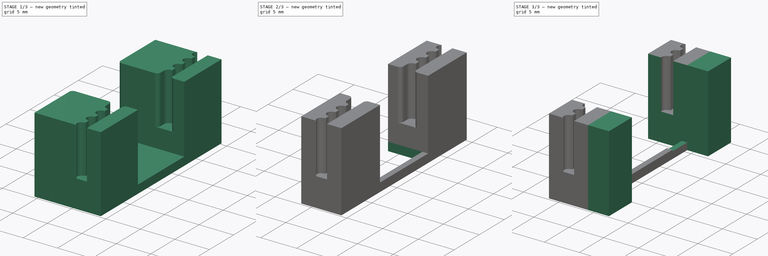
[diagram: build sequence overview — one tinted view per stage of 3, left to right]
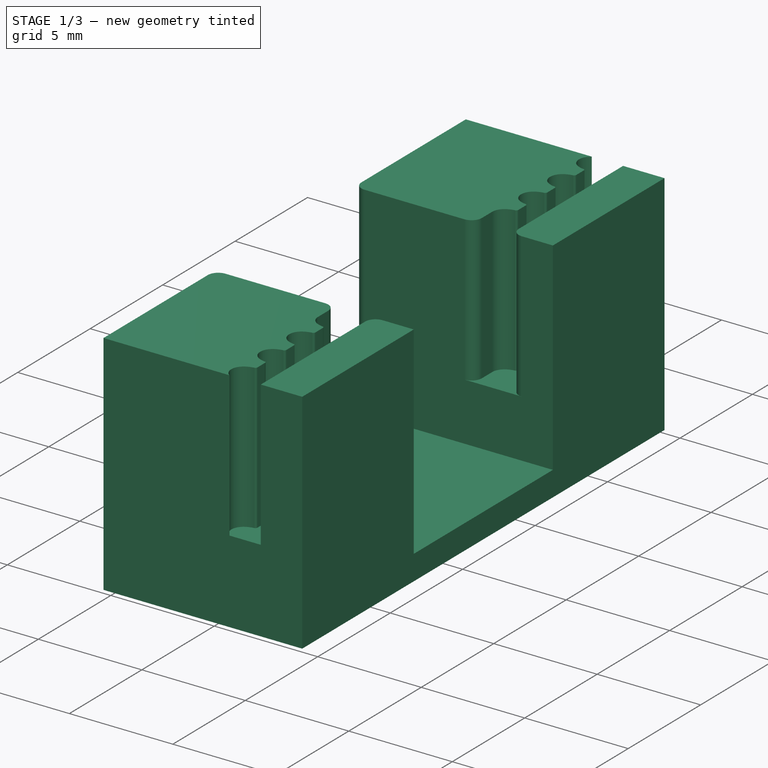
[diagram: stage 1 of 3 — iso view after this stage's code; geometry added in this stage tinted green]
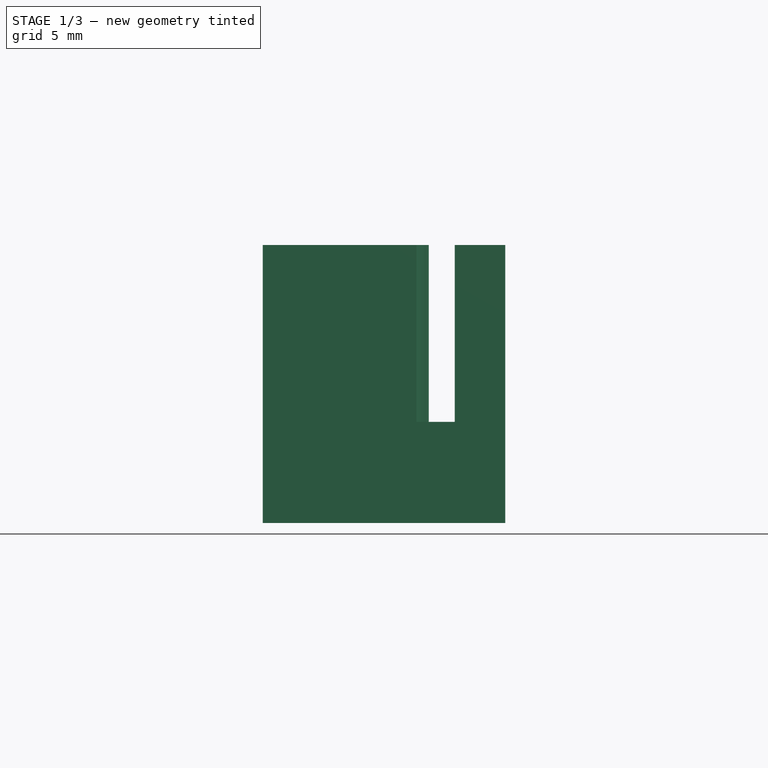
[diagram: stage 1 of 3 — front view after this stage's code; geometry added in this stage tinted green]
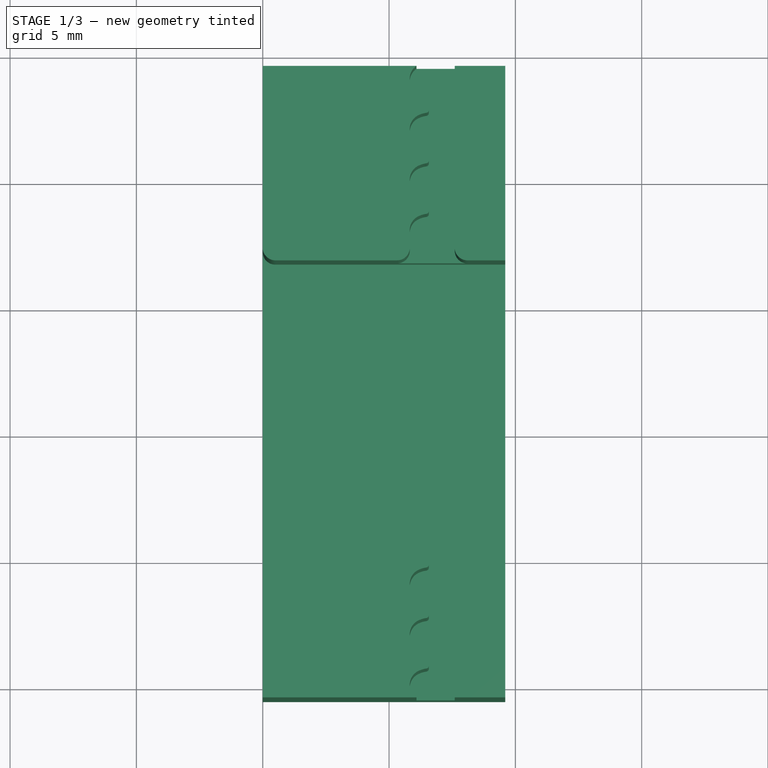
[diagram: stage 1 of 3 — top view after this stage's code; geometry added in this stage tinted green]
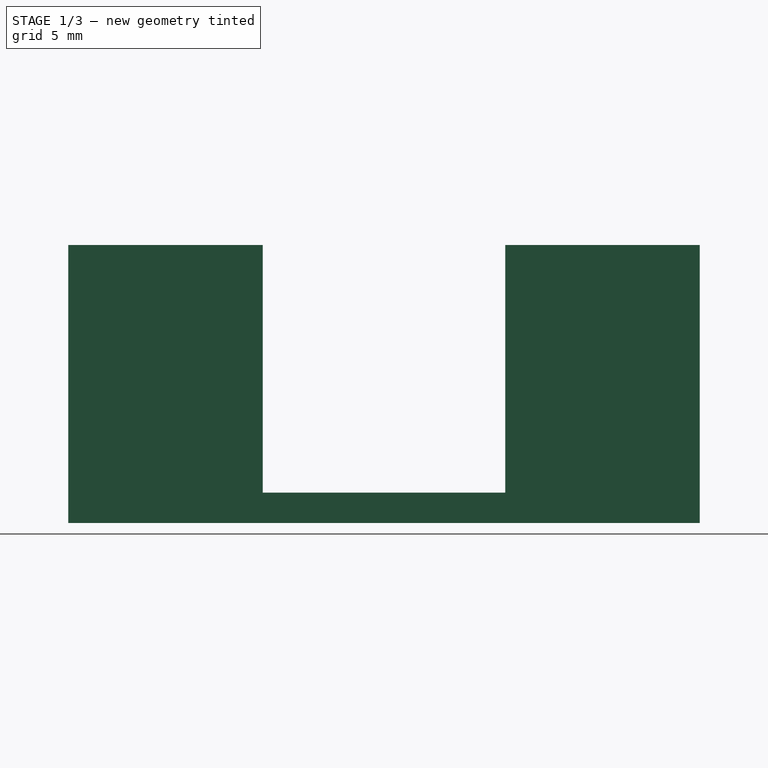
[diagram: stage 1 of 3 — right view after this stage's code; geometry added in this stage tinted green]
FCSTD DOCUMENT  (FreeCAD 0.18.4R)
Label: belt_support_left
License: All rights reserved
LicenseURL: http://en.wikipedia.org/wiki/All_rights_reserved
objects: Sketcher::SketchObject×8, PartDesign::Pocket×6, Part::Feature×1, PartDesign::FeatureBase×1, PartDesign::Pad×1, PartDesign::Body×1
note: 25 computed .brp shape members not serialized (recipe doc carries the construction recipe); baked Part::Feature solids carry a one-line shape summary decoded from their .brp

FEATURE [Part::Feature] Part__Feature  label="FusionComponent"
  shape: bbox 12.6 x 34 x 11 mm, 107 faces (baked)
FEATURE [PartDesign::FeatureBase] BaseFeature
  BaseFeature = -> Part__Feature
FEATURE [Sketcher::SketchObject] Sketch
  ExternalGeometry = -> [BaseFeature]
  MapMode = 5
  Placement = pos=(0,0,9.5) rot=(0,0,1;0rad)
  Support = -> [BaseFeature]
  sketch-geometry (4):
    g0: LineSegment StartX=9.6 StartY=-4.99368 StartZ=0 EndX=17.7992 EndY=-4.99368 EndZ=0
    g1: LineSegment StartX=17.7992 StartY=-4.99368 StartZ=0 EndX=17.7992 EndY=39.6281 EndZ=0
    g2: LineSegment StartX=17.7992 StartY=39.6281 StartZ=0 EndX=9.6 EndY=39.6281 EndZ=0
    g3: LineSegment StartX=9.6 StartY=39.6281 StartZ=0 EndX=9.6 EndY=-4.99368 EndZ=0
  constraints (9):
    c: Coincident(g0,g1)
    c: Coincident(g1,g2)
    c: Coincident(g2,g3)
    c: Coincident(g3,g0)
    c: Horizontal(g0)
    c: Horizontal(g2)
    c: Vertical(g1)
    c: Vertical(g3)
    c: PointOnObject(g-8,g3)
FEATURE [PartDesign::Pocket] Pocket
  BaseFeature = -> BaseFeature
  Length = 12
  Length2 = 100
  Profile = -> Sketch
  Type = 0
FEATURE [Sketcher::SketchObject] Sketch001
  ExternalGeometry = -> [Pocket]
  MapMode = 5
  Placement = pos=(0,0,9.5) rot=(0,0,1;0rad)
  Support = -> [Pocket]
  sketch-geometry (8):
    g0: LineSegment StartX=-2.03435 StartY=29.5 StartZ=0 EndX=14.4363 EndY=29.5 EndZ=0
    g1: LineSegment StartX=14.4363 StartY=29.5 StartZ=0 EndX=14.4363 EndY=34 EndZ=0
    g2: LineSegment StartX=14.4363 StartY=34 StartZ=0 EndX=-2.03435 EndY=34 EndZ=0
    g3: LineSegment StartX=-2.03435 StartY=34 StartZ=0 EndX=-2.03435 EndY=29.5 EndZ=0
    g4: LineSegment StartX=-3.19707 StartY=0 StartZ=0 EndX=14.9866 EndY=0 EndZ=0
    g5: LineSegment StartX=14.9866 StartY=0 StartZ=0 EndX=14.9866 EndY=4.5 EndZ=0
    g6: LineSegment StartX=14.9866 StartY=4.5 StartZ=0 EndX=-3.19707 EndY=4.5 EndZ=0
    g7: LineSegment StartX=-3.19707 StartY=4.5 StartZ=0 EndX=-3.19707 EndY=0 EndZ=0
  constraints (21):
    c: Distance(g-3,g-4) = 34
    c: Coincident(g0,g1)
    c: Coincident(g1,g2)
    c: Coincident(g2,g3)
    c: Coincident(g3,g0)
    c: Horizontal(g0)
    c: Horizontal(g2)
    c: Vertical(g1)
    c: Vertical(g3)
    c: Coincident(g4,g5)
    c: Coincident(g5,g6)
    c: Coincident(g6,g7)
    c: Coincident(g7,g4)
    c: Horizontal(g4)
    c: Horizontal(g6)
    c: Vertical(g5)
    c: Vertical(g7)
    c: DistanceY(g3,g3) = 4.5
    c: DistanceY(g7,g7) = 4.5
    c: PointOnObject(g-3,g2)
    c: PointOnObject(g-4,g4)
FEATURE [PartDesign::Pocket] Pocket001
  BaseFeature = -> Pocket
  Length = 15
  Length2 = 100
  Profile = -> Sketch001
  Type = 0
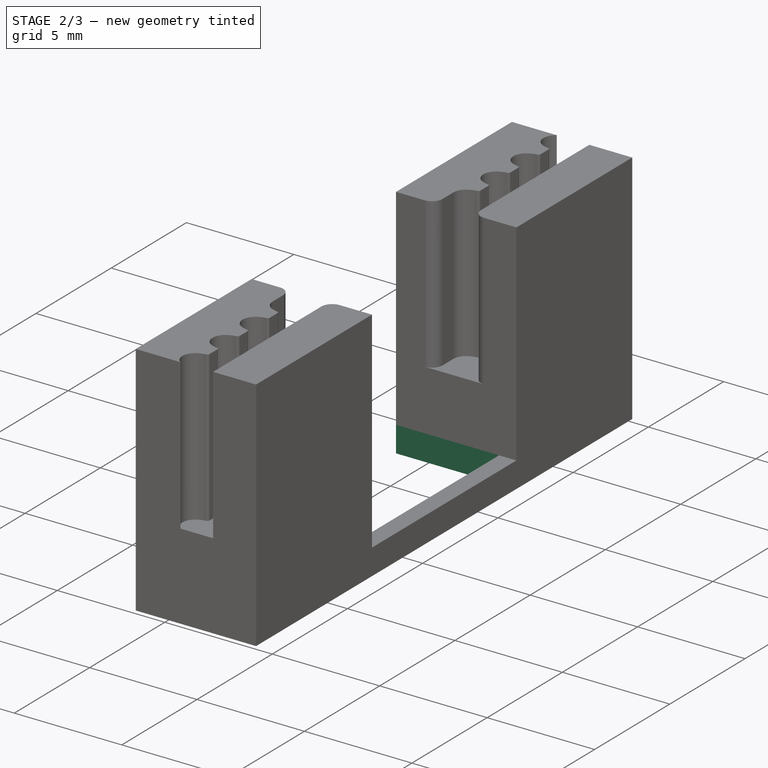
[diagram: stage 2 of 3 — iso view after this stage's code; geometry added in this stage tinted green]
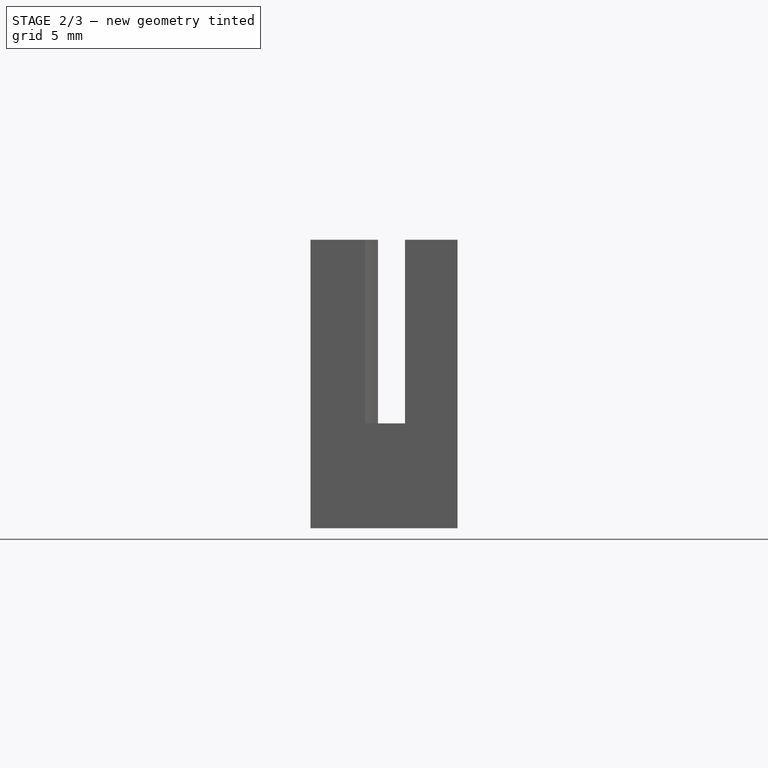
[diagram: stage 2 of 3 — front view after this stage's code; geometry added in this stage tinted green]
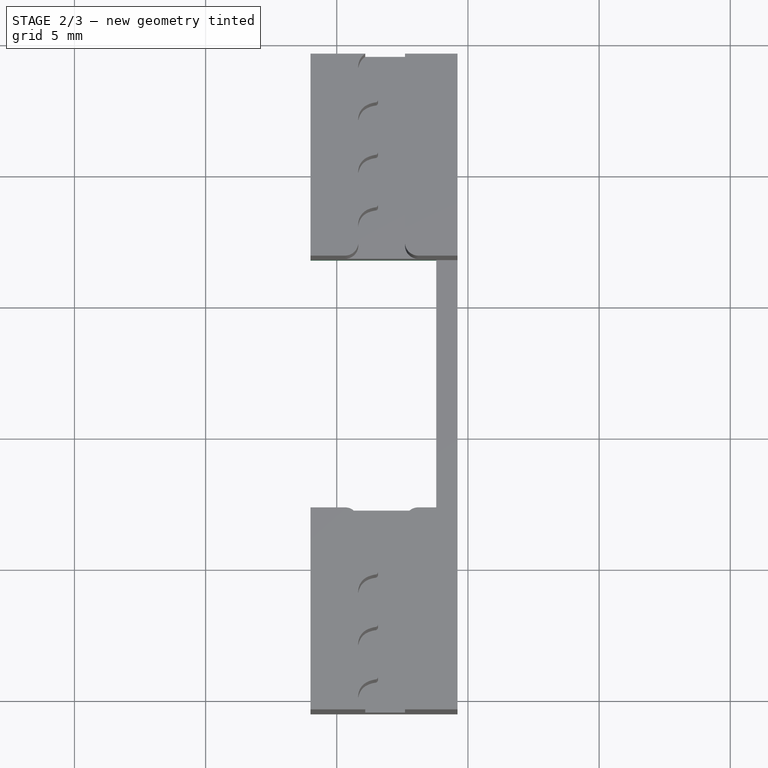
[diagram: stage 2 of 3 — top view after this stage's code; geometry added in this stage tinted green]
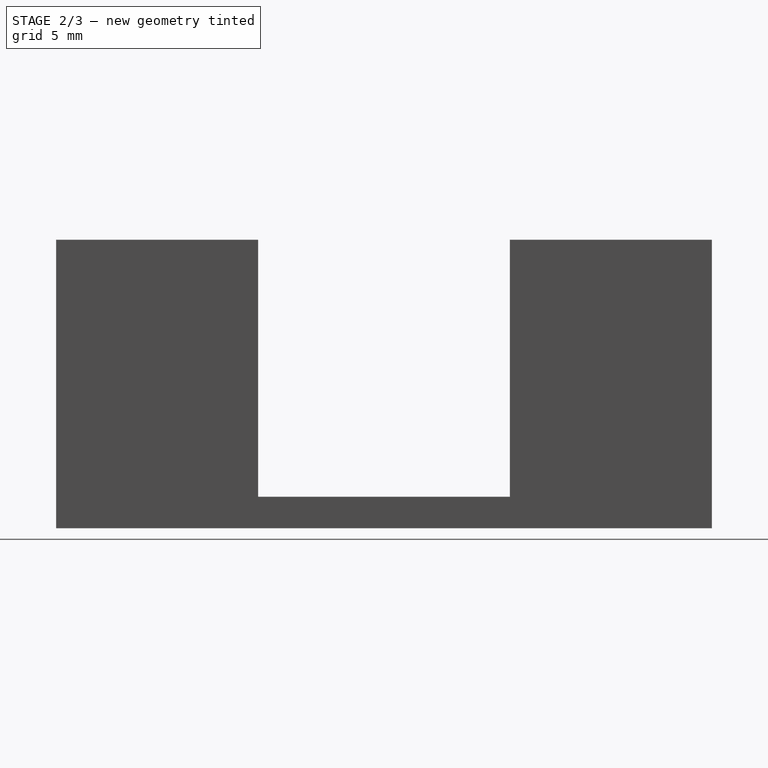
[diagram: stage 2 of 3 — right view after this stage's code; geometry added in this stage tinted green]
FEATURE [Sketcher::SketchObject] Sketch002
  ExternalGeometry = -> [Pocket001]
  MapMode = 5
  Placement = pos=(0,0,-0.3) rot=(0,0,1;0rad)
  Support = -> [Pocket001]
  sketch-geometry (4):
    g0: LineSegment StartX=0 StartY=12.2 StartZ=0 EndX=8.79244 EndY=12.2 EndZ=0
    g1: LineSegment StartX=8.79244 StartY=12.2 StartZ=0 EndX=8.79244 EndY=21.8 EndZ=0
    g2: LineSegment StartX=8.79244 StartY=21.8 StartZ=0 EndX=0 EndY=21.8 EndZ=0
    g3: LineSegment StartX=0 StartY=21.8 StartZ=0 EndX=0 EndY=12.2 EndZ=0
  constraints (11):
    c: Coincident(g0,g1)
    c: Coincident(g1,g2)
    c: Coincident(g2,g3)
    c: Coincident(g3,g0)
    c: Horizontal(g0)
    c: Horizontal(g2)
    c: Vertical(g1)
    c: Vertical(g3)
    c: PointOnObject(g0,g-3)
    c: PointOnObject(g1,g-6)
    c: PointOnObject(g0,g-5)
FEATURE [PartDesign::Pocket] Pocket002
  BaseFeature = -> Pocket001
  Length = 5
  Length2 = 100
  Profile = -> Sketch002
  Type = 0
FEATURE [Sketcher::SketchObject] Sketch003
  ExternalGeometry = -> [Pocket002]
  MapMode = 5
  Placement = pos=(0,0,9.5) rot=(0,0,1;0rad)
  Support = -> [Pocket002]
  sketch-geometry (4):
    g0: LineSegment StartX=0 StartY=29.5 StartZ=0 EndX=4 EndY=29.5 EndZ=0
    g1: LineSegment StartX=4 StartY=29.5 StartZ=0 EndX=4 EndY=4.5 EndZ=0
    g2: LineSegment StartX=4 StartY=4.5 StartZ=0 EndX=0 EndY=4.5 EndZ=0
    g3: LineSegment StartX=0 StartY=4.5 StartZ=0 EndX=0 EndY=29.5 EndZ=0
  constraints (11):
    c: Coincident(g0,g1)
    c: Coincident(g1,g2)
    c: Coincident(g2,g3)
    c: Coincident(g3,g0)
    c: Horizontal(g0)
    c: Horizontal(g2)
    c: Vertical(g1)
    c: Vertical(g3)
    c: Coincident(g0,g-3)
    c: PointOnObject(g1,g-4)
    c: DistanceX(g0,g0) = 4
FEATURE [PartDesign::Pocket] Pocket003
  BaseFeature = -> Pocket002
  Length = 15
  Length2 = 100
  Profile = -> Sketch003
  Type = 0
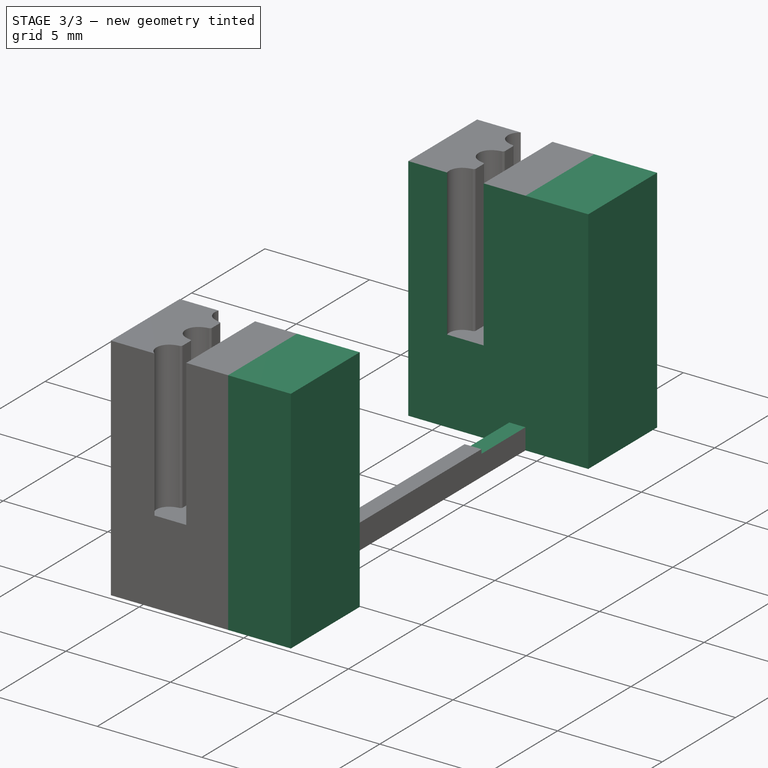
[diagram: stage 3 of 3 — iso view after this stage's code; geometry added in this stage tinted green]
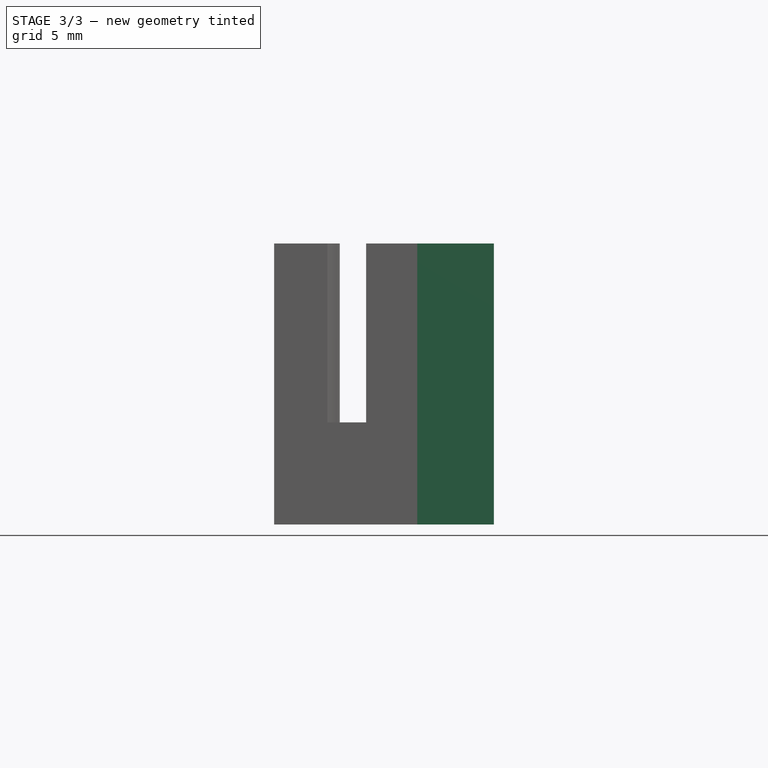
[diagram: stage 3 of 3 — front view after this stage's code; geometry added in this stage tinted green]
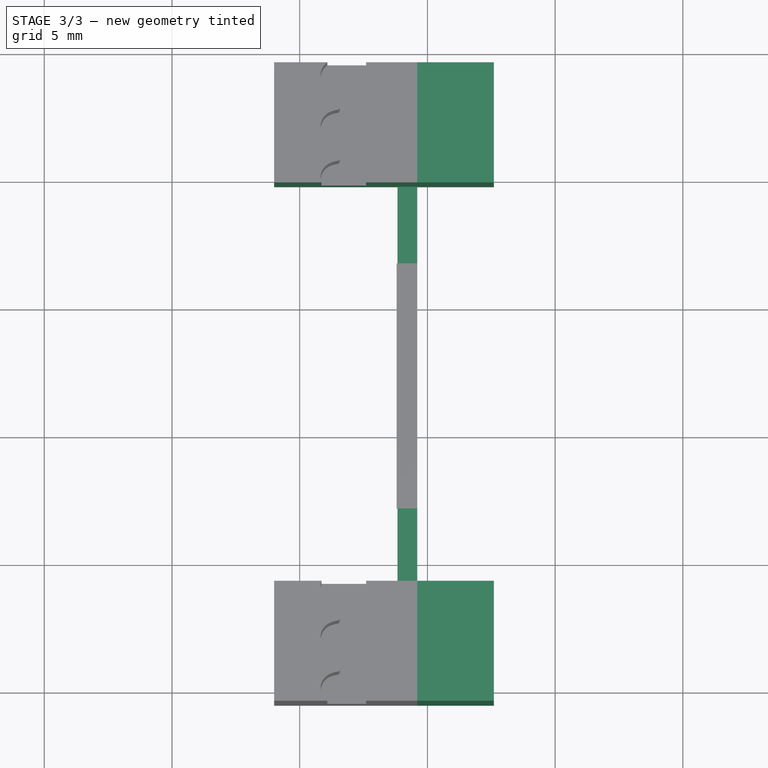
[diagram: stage 3 of 3 — top view after this stage's code; geometry added in this stage tinted green]
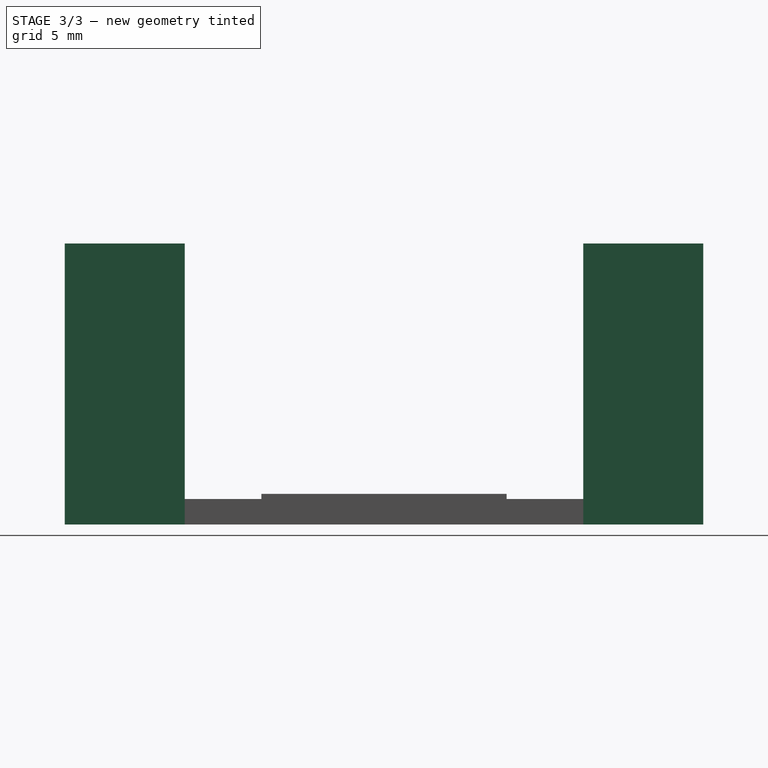
[diagram: stage 3 of 3 — right view after this stage's code; geometry added in this stage tinted green]
FEATURE [Sketcher::SketchObject] Sketch004
  ExternalGeometry = -> [Pocket003]
  MapMode = 5
  Placement = pos=(0,0,9.5) rot=(0,0,1;0rad)
  Support = -> [Pocket003]
  sketch-geometry (8):
    g0: LineSegment StartX=9.6 StartY=21.8 StartZ=0 EndX=4 EndY=21.8 EndZ=0
    g1: LineSegment StartX=4 StartY=21.8 StartZ=0 EndX=4 EndY=24.8 EndZ=0
    g2: LineSegment StartX=4 StartY=24.8 StartZ=0 EndX=9.6 EndY=24.8 EndZ=0
    g3: LineSegment StartX=9.6 StartY=24.8 StartZ=0 EndX=9.6 EndY=21.8 EndZ=0
    g4: LineSegment StartX=9.6 StartY=12.2 StartZ=0 EndX=4 EndY=12.2 EndZ=0
    g5: LineSegment StartX=4 StartY=12.2 StartZ=0 EndX=4 EndY=9.2 EndZ=0
    g6: LineSegment StartX=4 StartY=9.2 StartZ=0 EndX=9.6 EndY=9.2 EndZ=0
    g7: LineSegment StartX=9.6 StartY=9.2 StartZ=0 EndX=9.6 EndY=12.2 EndZ=0
  constraints (22):
    c: Coincident(g0,g1)
    c: Coincident(g1,g2)
    c: Coincident(g2,g3)
    c: Coincident(g3,g0)
    c: Horizontal(g0)
    c: Horizontal(g2)
    c: Vertical(g1)
    c: Vertical(g3)
    c: Coincident(g0,g-4)
    c: PointOnObject(g1,g-3)
    c: Coincident(g4,g5)
    c: Coincident(g5,g6)
    c: Coincident(g6,g7)
    c: Coincident(g7,g4)
    c: Horizontal(g4)
    c: Horizontal(g6)
    c: Vertical(g5)
    c: Vertical(g7)
    c: Coincident(g4,g-5)
    c: PointOnObject(g5,g-6)
    c: DistanceY(g1,g1) = 3
    c: DistanceY(g7,g7) = 3
FEATURE [PartDesign::Pocket] Pocket004
  BaseFeature = -> Pocket003
  Length = 10
  Length2 = 100
  Profile = -> Sketch004
  Type = 0
FEATURE [Sketcher::SketchObject] Sketch005
  ExternalGeometry = -> [Pocket004]
  MapMode = 5
  Placement = pos=(0,0,-0.5) rot=(0,0,1;0rad)
  Support = -> [Pocket004]
  sketch-geometry (4):
    g0: LineSegment StartX=4 StartY=24.8 StartZ=0 EndX=8.82776 EndY=24.8 EndZ=0
    g1: LineSegment StartX=8.82776 StartY=24.8 StartZ=0 EndX=8.82776 EndY=9.2 EndZ=0
    g2: LineSegment StartX=8.82776 StartY=9.2 StartZ=0 EndX=4 EndY=9.2 EndZ=0
    g3: LineSegment StartX=4 StartY=9.2 StartZ=0 EndX=4 EndY=24.8 EndZ=0
  constraints (10):
    c: Coincident(g0,g1)
    c: Coincident(g1,g2)
    c: Coincident(g2,g3)
    c: Coincident(g3,g0)
    c: Horizontal(g0)
    c: Horizontal(g2)
    c: Vertical(g1)
    c: Vertical(g3)
    c: Coincident(g0,g-3)
    c: PointOnObject(g1,g-4)
FEATURE [PartDesign::Pocket] Pocket005
  BaseFeature = -> Pocket004
  Length = 5
  Length2 = 100
  Profile = -> Sketch005
  Type = 0
FEATURE [Sketcher::SketchObject] Sketch006
  ExternalGeometry = -> [Pocket005]
  MapMode = 5
  Placement = pos=(9.6,0,0) rot=(0.57735,0.57735,0.57735;2.0944rad)
  Support = -> [Pocket005]
  sketch-geometry (8):
    g0: LineSegment StartX=9.2 StartY=9.5 StartZ=0 EndX=4.5 EndY=9.5 EndZ=0
    g1: LineSegment StartX=4.5 StartY=9.5 StartZ=0 EndX=4.5 EndY=-1.5 EndZ=0
    g2: LineSegment StartX=4.5 StartY=-1.5 StartZ=0 EndX=9.2 EndY=-1.5 EndZ=0
    g3: LineSegment StartX=9.2 StartY=-1.5 StartZ=0 EndX=9.2 EndY=9.5 EndZ=0
    g4: LineSegment StartX=24.8 StartY=9.5 StartZ=0 EndX=29.5 EndY=9.5 EndZ=0
    g5: LineSegment StartX=29.5 StartY=9.5 StartZ=0 EndX=29.5 EndY=-1.5 EndZ=0
    g6: LineSegment StartX=29.5 StartY=-1.5 StartZ=0 EndX=24.8 EndY=-1.5 EndZ=0
    g7: LineSegment StartX=24.8 StartY=-1.5 StartZ=0 EndX=24.8 EndY=9.5 EndZ=0
  constraints (20):
    c: Coincident(g0,g1)
    c: Coincident(g1,g2)
    c: Coincident(g2,g3)
    c: Coincident(g3,g0)
    c: Horizontal(g0)
    c: Horizontal(g2)
    c: Vertical(g1)
    c: Vertical(g3)
    c: Coincident(g0,g-3)
    c: Coincident(g1,g-4)
    c: Coincident(g4,g5)
    c: Coincident(g5,g6)
    c: Coincident(g6,g7)
    c: Coincident(g7,g4)
    c: Horizontal(g4)
    c: Horizontal(g6)
    c: Vertical(g5)
    c: Vertical(g7)
    c: Coincident(g4,g-5)
    c: Coincident(g5,g-6)
FEATURE [PartDesign::Pad] Pad
  BaseFeature = -> Pocket005
  Length = 3
  Length2 = 100
  Profile = -> Sketch006
  Type = 0
FEATURE [Sketcher::SketchObject] Sketch007
  ExternalGeometry = -> [Pad]
  MapMode = 5
  Placement = pos=(9.6,0,0) rot=(0.57735,0.57735,0.57735;2.0944rad)
  Support = -> [Pad]
  sketch-geometry (4):
    g0: LineSegment StartX=24.8 StartY=-0.5 StartZ=0 EndX=9.2 EndY=-0.5 EndZ=0
    g1: LineSegment StartX=9.2 StartY=-0.5 StartZ=0 EndX=9.2 EndY=-1.5 EndZ=0
    g2: LineSegment StartX=9.2 StartY=-1.5 StartZ=0 EndX=24.8 EndY=-1.5 EndZ=0
    g3: LineSegment StartX=24.8 StartY=-1.5 StartZ=0 EndX=24.8 EndY=-0.5 EndZ=0
  constraints (10):
    c: Coincident(g0,g1)
    c: Coincident(g1,g2)
    c: Coincident(g2,g3)
    c: Coincident(g3,g0)
    c: Horizontal(g0)
    c: Horizontal(g2)
    c: Vertical(g1)
    c: Vertical(g3)
    c: Coincident(g0,g-4)
    c: Coincident(g1,g-6)
FEATURE [PartDesign::Body] Body
  BaseFeature = -> Part__Feature
  Group = -> [BaseFeature,Sketch,Pocket,Sketch001,Pocket001,Sketch002,Pocket002,Sketch003,Pocket003,Sketch004,Pocket004,Sketch005,Pocket005,Sketch006,Pad,Sketch007]
  Origin = -> Origin
  Tip = -> Pad
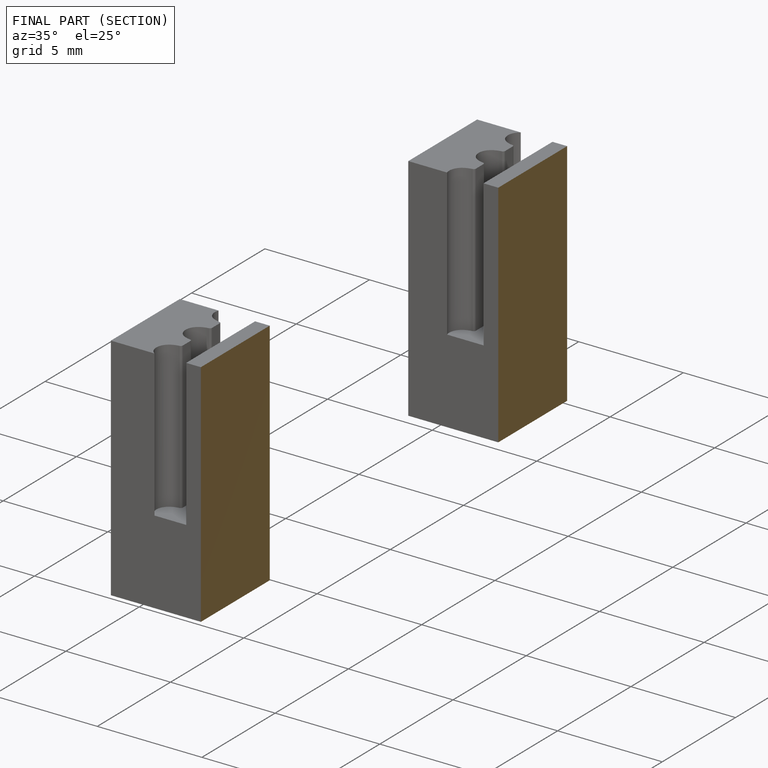
[diagram: finished part — half-section view (interior)]
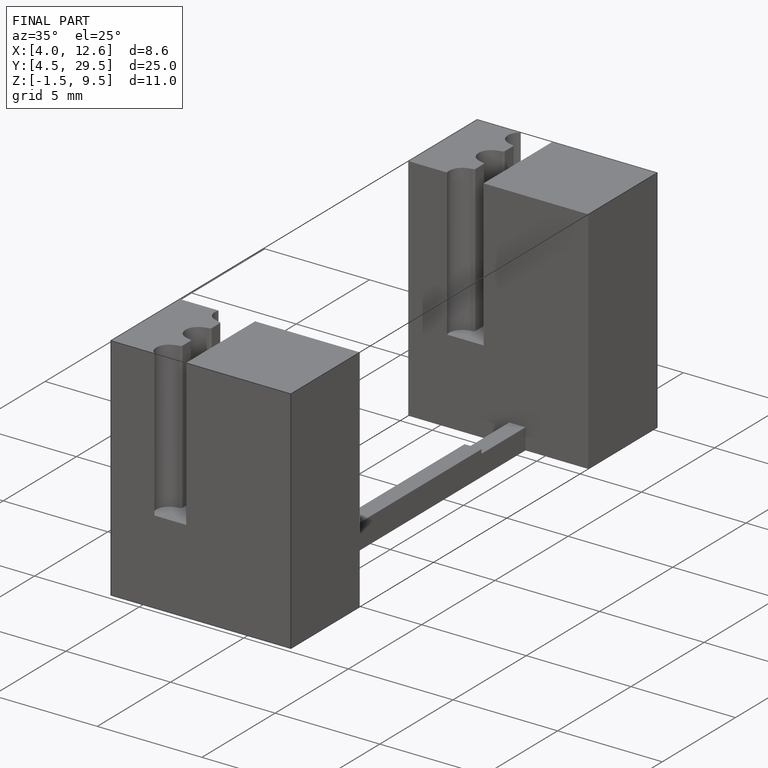
[diagram: finished part — iso view with bounding-box wireframe]
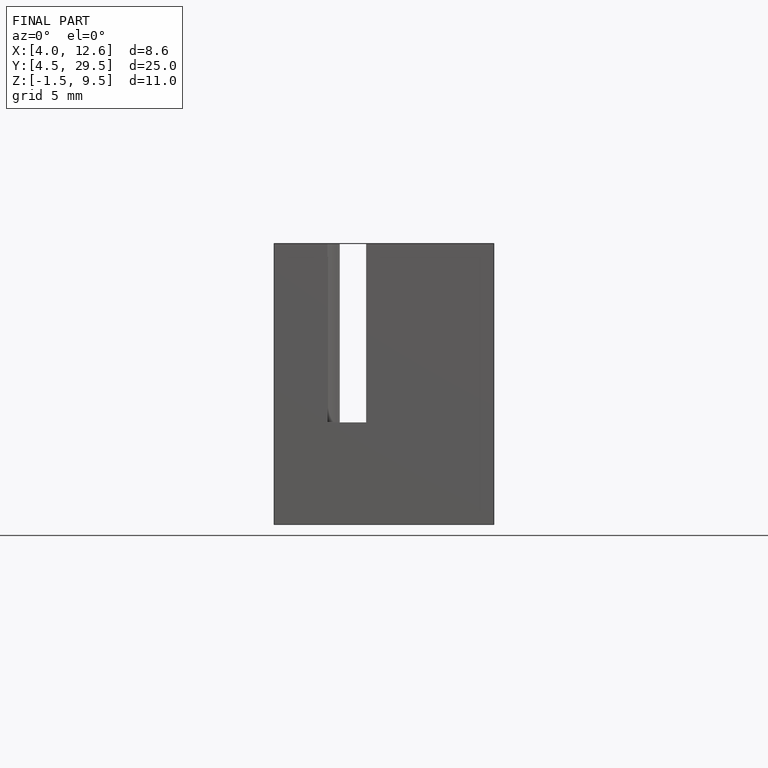
[diagram: finished part — front view with bounding-box wireframe]
